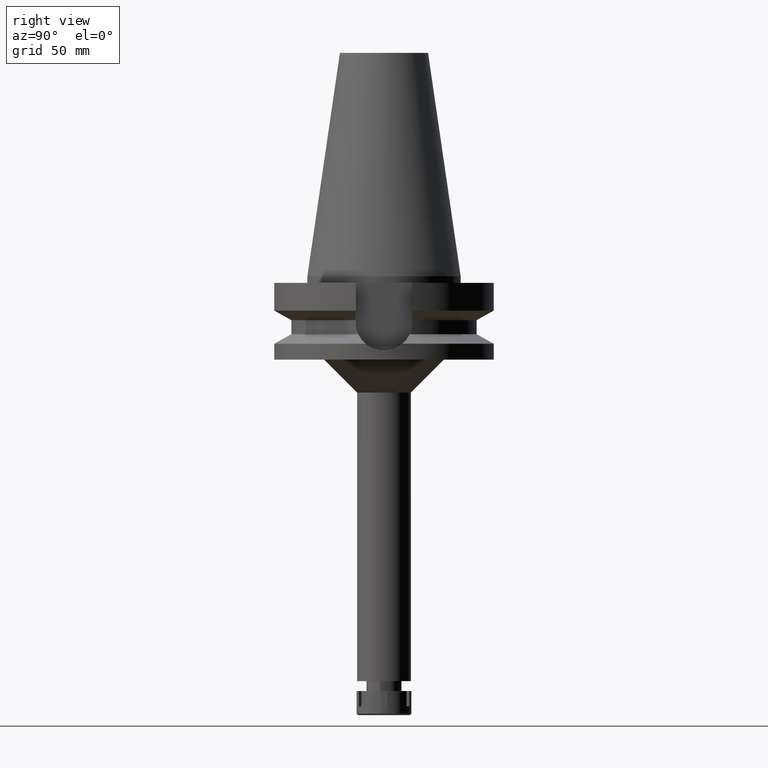
[diagram: clean part render]
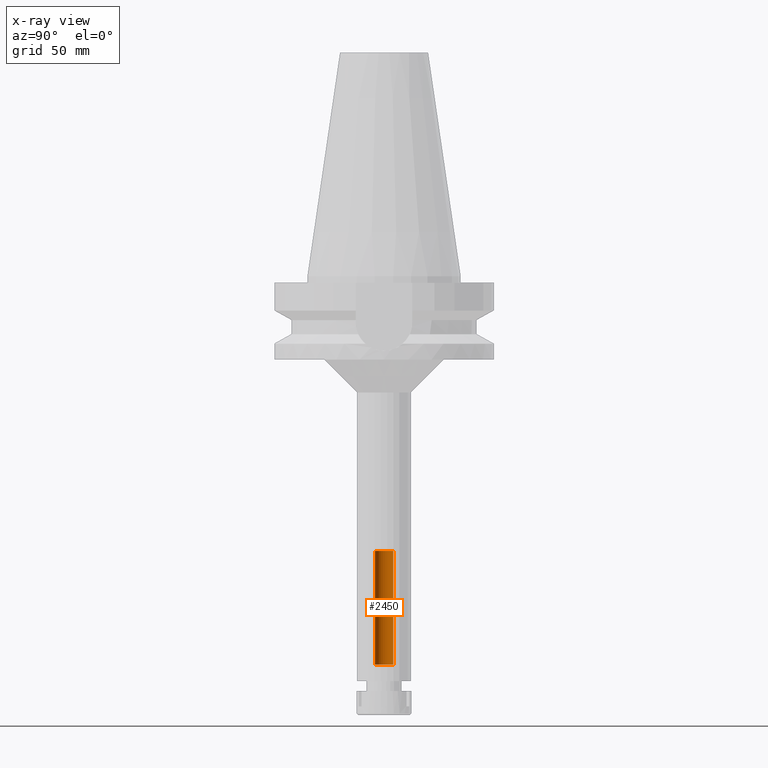
[diagram: x-ray — body ghosted, one internal face saturated and labeled with its STEP entity id]
A machine part, right view, then the same camera in x-ray: the body is ghosted and one INTERNAL B-rep face — a face not visible from any outside direction — is saturated and labeled: STEP entity #2450.
In plain terms, the highlighted cylindrical surface (edge-blend (fillet) strip) has radius 4.2 mm, axis along (0, 0, -1).
Its self-contained STEP definition (entity closure, byte-faithful):
#170 = VECTOR ( 'NONE', #1231, 1000.000000000000000 ) ;
#179 = CARTESIAN_POINT ( 'NONE',  ( 0.0000000000000000000, 4.200000000000000178, -177.0000000000000000 ) ) ;
#227 = EDGE_LOOP ( 'NONE', ( #2550, #532, #3658, #2888 ) ) ;
#391 = CYLINDRICAL_SURFACE ( 'NONE', #1335, 4.200000000000000178 ) ;
#532 = ORIENTED_EDGE ( 'NONE', *, *, #799, .F. ) ;
#628 = CARTESIAN_POINT ( 'NONE',  ( 0.0000000000000000000, -4.200000000000000178, -177.0000000000000000 ) ) ;
#661 = LINE ( 'NONE', #628, #894 ) ;
#787 = VERTEX_POINT ( 'NONE', #1222 ) ;
#797 = VERTEX_POINT ( 'NONE', #3474 ) ;
#799 = EDGE_CURVE ( 'NONE', #797, #2104, #661, .T. ) ;
#894 = VECTOR ( 'NONE', #1821, 1000.000000000000000 ) ;
#1155 = DIRECTION ( 'NONE',  ( 0.0000000000000000000, 0.0000000000000000000, -1.000000000000000000 ) ) ;
#1222 = CARTESIAN_POINT ( 'NONE',  ( 0.0000000000000000000, 4.200000000000000178, -125.2000000000000028 ) ) ;
#1231 = DIRECTION ( 'NONE',  ( 0.0000000000000000000, 0.0000000000000000000, 1.000000000000000000 ) ) ;
#1312 = CARTESIAN_POINT ( 'NONE',  ( 0.0000000000000000000, -4.200000000000000178, -125.2000000000000028 ) ) ;
#1335 = AXIS2_PLACEMENT_3D ( 'NONE', #2735, #1570, #2716 ) ;
#1554 = CARTESIAN_POINT ( 'NONE',  ( 0.0000000000000000000, 2.652462502272999887E-14, -125.2000000000000028 ) ) ;
#1570 = DIRECTION ( 'NONE',  ( 0.0000000000000000000, 0.0000000000000000000, -1.000000000000000000 ) ) ;
#1700 = CARTESIAN_POINT ( 'NONE',  ( 0.0000000000000000000, 2.652462502272999887E-14, -177.0000000000000000 ) ) ;
#1821 = DIRECTION ( 'NONE',  ( 0.0000000000000000000, 0.0000000000000000000, 1.000000000000000000 ) ) ;
#1870 = CARTESIAN_POINT ( 'NONE',  ( 0.0000000000000000000, 4.200000000000000178, -177.0000000000000000 ) ) ;
#1880 = CIRCLE ( 'NONE', #3328, 4.200000000000000178 ) ;
#1930 = EDGE_CURVE ( 'NONE', #797, #3528, #2357, .T. ) ;
#1938 = AXIS2_PLACEMENT_3D ( 'NONE', #1700, #1155, #2880 ) ;
#2104 = VERTEX_POINT ( 'NONE', #1312 ) ;
#2120 = LINE ( 'NONE', #1870, #170 ) ;
#2162 = DIRECTION ( 'NONE',  ( 0.0000000000000000000, 0.0000000000000000000, 1.000000000000000000 ) ) ;
#2357 = CIRCLE ( 'NONE', #1938, 4.200000000000000178 ) ;
#2417 = EDGE_CURVE ( 'NONE', #787, #2104, #1880, .T. ) ;
#2450 = ADVANCED_FACE ( 'NONE', ( #3026 ), #391, .F. ) ;
#2550 = ORIENTED_EDGE ( 'NONE', *, *, #2417, .T. ) ;
#2674 = DIRECTION ( 'NONE',  ( 0.0000000000000000000, 1.000000000000000000, 0.0000000000000000000 ) ) ;
#2716 = DIRECTION ( 'NONE',  ( 0.0000000000000000000, -1.000000000000000000, 0.0000000000000000000 ) ) ;
#2735 = CARTESIAN_POINT ( 'NONE',  ( 0.0000000000000000000, 2.652462502272999887E-14, 116.5900000000000034 ) ) ;
#2880 = DIRECTION ( 'NONE',  ( 0.0000000000000000000, -1.000000000000000000, 0.0000000000000000000 ) ) ;
#2888 = ORIENTED_EDGE ( 'NONE', *, *, #3050, .T. ) ;
#3026 = FACE_OUTER_BOUND ( 'NONE', #227, .T. ) ;
#3050 = EDGE_CURVE ( 'NONE', #3528, #787, #2120, .T. ) ;
#3328 = AXIS2_PLACEMENT_3D ( 'NONE', #1554, #2162, #2674 ) ;
#3474 = CARTESIAN_POINT ( 'NONE',  ( 0.0000000000000000000, -4.200000000000000178, -177.0000000000000000 ) ) ;
#3528 = VERTEX_POINT ( 'NONE', #179 ) ;
#3658 = ORIENTED_EDGE ( 'NONE', *, *, #1930, .T. ) ;